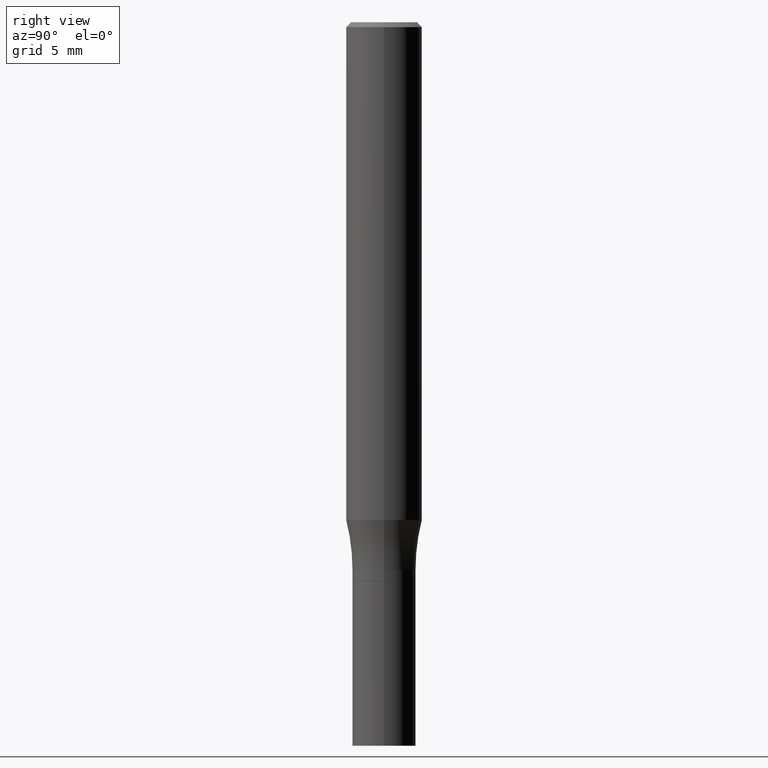
[diagram: clean part render]
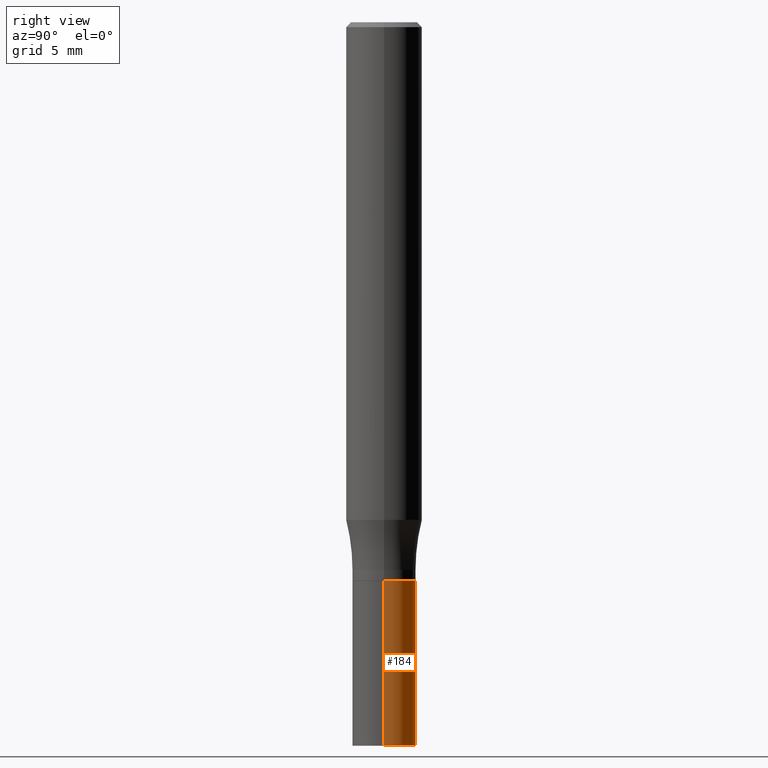
[diagram: same view with one face highlighted and labeled with its STEP entity id]
A machine part, right view. The second image highlights one B-rep face of the part: STEP entity #184.
In plain terms, the highlighted cylindrical surface (edge-blend (fillet) strip) has radius 2.5006 mm, axis along (-0, 0, 1).
Its self-contained STEP definition (entity closure, byte-faithful):
#8 = DIRECTION ( 'NONE',  ( -2.445468806185136597E-29, 3.491481338843145583E-15, 1.000000000000000000 ) ) ;
#9 = DIRECTION ( 'NONE',  ( 1.000000000000000000, -6.982962677686265133E-15, 0.000000000000000000 ) ) ;
#26 = AXIS2_PLACEMENT_3D ( 'NONE', #50, #243, #132 ) ;
#50 = CARTESIAN_POINT ( 'NONE',  ( 4.236285612954512392E-29, -6.048293123277981078E-15, -1.732299999999999951 ) ) ;
#52 = EDGE_CURVE ( 'NONE', #268, #463, #431, .T. ) ;
#84 = DIRECTION ( 'NONE',  ( -2.445468806185136877E-29, 3.491481338843145188E-15, 1.000000000000000000 ) ) ;
#91 = VERTEX_POINT ( 'NONE', #127 ) ;
#108 = CYLINDRICAL_SURFACE ( 'NONE', #298, 0.09845000000000000973 ) ;
#121 = LINE ( 'NONE', #414, #230 ) ;
#127 = CARTESIAN_POINT ( 'NONE',  ( 0.09845000000000000973, -8.522705948116114900E-15, -2.244099999999999984 ) ) ;
#130 = ORIENTED_EDGE ( 'NONE', *, *, #261, .F. ) ;
#132 = DIRECTION ( 'NONE',  ( 1.000000000000000000, -6.982962677686265133E-15, 0.000000000000000000 ) ) ;
#135 = EDGE_LOOP ( 'NONE', ( #172, #307, #276, #130 ) ) ;
#152 = CARTESIAN_POINT ( 'NONE',  ( -0.09845000000000000973, 6.995293233558187021E-16, -4.842691596355954742E-30 ) ) ;
#172 = ORIENTED_EDGE ( 'NONE', *, *, #426, .T. ) ;
#184 = ADVANCED_FACE ( 'NONE', ( #266 ), #108, .T. ) ;
#210 = EDGE_CURVE ( 'NONE', #281, #463, #232, .T. ) ;
#214 = CARTESIAN_POINT ( 'NONE',  ( 5.487876547960064752E-29, -7.835233272497902340E-15, -2.244099999999999984 ) ) ;
#230 = VECTOR ( 'NONE', #84, 39.37007874015748143 ) ;
#232 = LINE ( 'NONE', #152, #336 ) ;
#234 = CARTESIAN_POINT ( 'NONE',  ( 0.09845000000000000973, -6.735765798896194427E-15, -1.732299999999999951 ) ) ;
#243 = DIRECTION ( 'NONE',  ( -2.445468806185136597E-29, 3.491481338843145583E-15, 1.000000000000000000 ) ) ;
#256 = CARTESIAN_POINT ( 'NONE',  ( 0.000000000000000000, 0.000000000000000000, 0.000000000000000000 ) ) ;
#261 = EDGE_CURVE ( 'NONE', #91, #268, #121, .T. ) ;
#266 = FACE_OUTER_BOUND ( 'NONE', #135, .T. ) ;
#268 = VERTEX_POINT ( 'NONE', #234 ) ;
#276 = ORIENTED_EDGE ( 'NONE', *, *, #52, .F. ) ;
#281 = VERTEX_POINT ( 'NONE', #372 ) ;
#298 = AXIS2_PLACEMENT_3D ( 'NONE', #256, #8, #398 ) ;
#307 = ORIENTED_EDGE ( 'NONE', *, *, #210, .T. ) ;
#335 = DIRECTION ( 'NONE',  ( -2.445468806185136877E-29, 3.491481338843145188E-15, 1.000000000000000000 ) ) ;
#336 = VECTOR ( 'NONE', #335, 39.37007874015748143 ) ;
#353 = CIRCLE ( 'NONE', #413, 0.09845000000000000973 ) ;
#363 = DIRECTION ( 'NONE',  ( -2.445468806185136597E-29, 3.491481338843145583E-15, 1.000000000000000000 ) ) ;
#372 = CARTESIAN_POINT ( 'NONE',  ( -0.09845000000000000973, -6.242233874532123993E-15, -2.244099999999999984 ) ) ;
#373 = CARTESIAN_POINT ( 'NONE',  ( -0.09845000000000000973, -6.242233874532123993E-15, -1.732299999999999951 ) ) ;
#398 = DIRECTION ( 'NONE',  ( 1.000000000000000000, -6.982962677686266711E-15, 4.876176775795935793E-29 ) ) ;
#413 = AXIS2_PLACEMENT_3D ( 'NONE', #214, #363, #9 ) ;
#414 = CARTESIAN_POINT ( 'NONE',  ( 0.09845000000000000973, -6.874726756182130531E-16, 4.800596035771099214E-30 ) ) ;
#426 = EDGE_CURVE ( 'NONE', #91, #281, #353, .T. ) ;
#431 = CIRCLE ( 'NONE', #26, 0.09845000000000000973 ) ;
#463 = VERTEX_POINT ( 'NONE', #373 ) ;